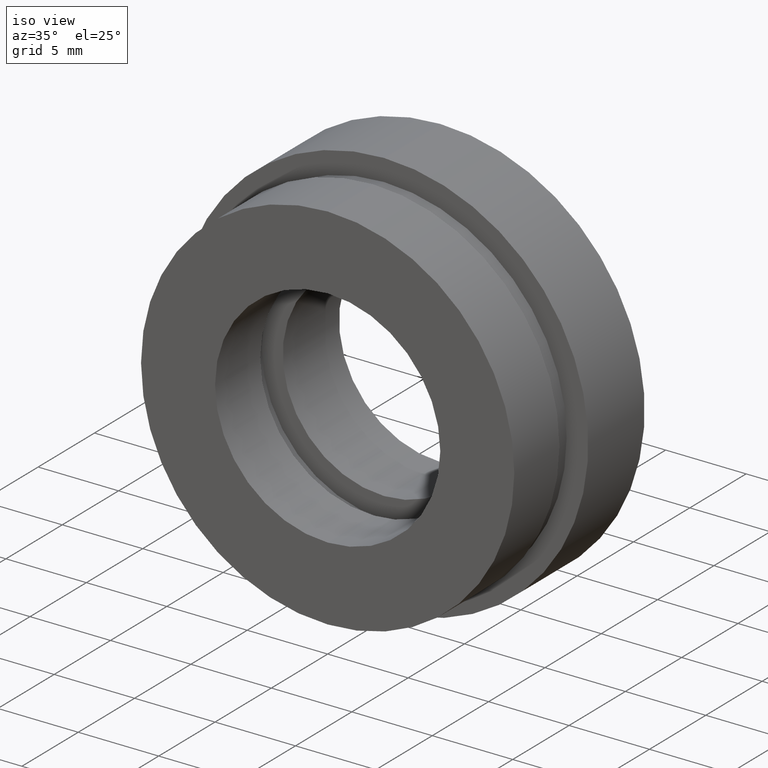
[diagram: clean part render]
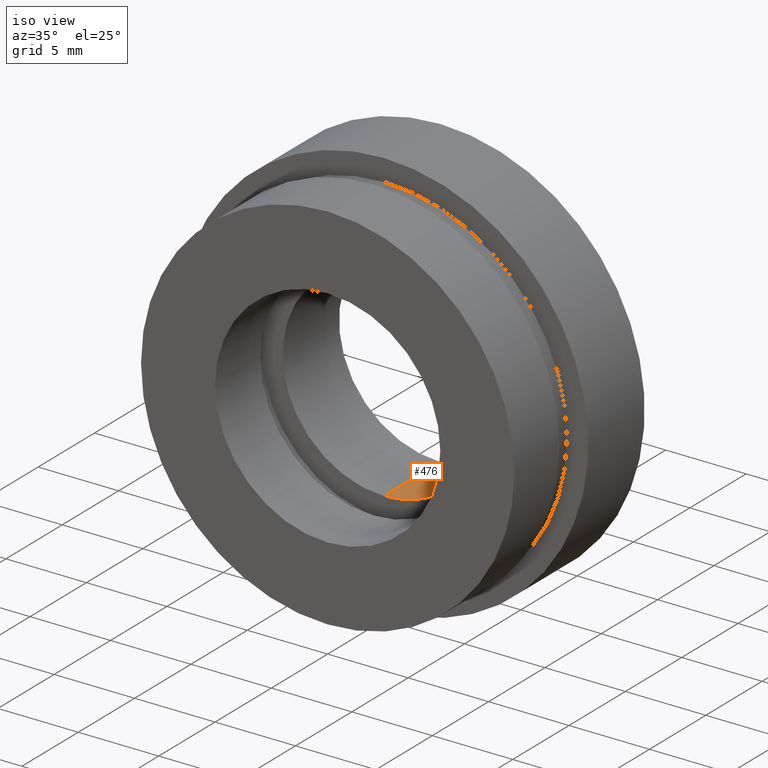
[diagram: same view with one face highlighted and labeled with its STEP entity id]
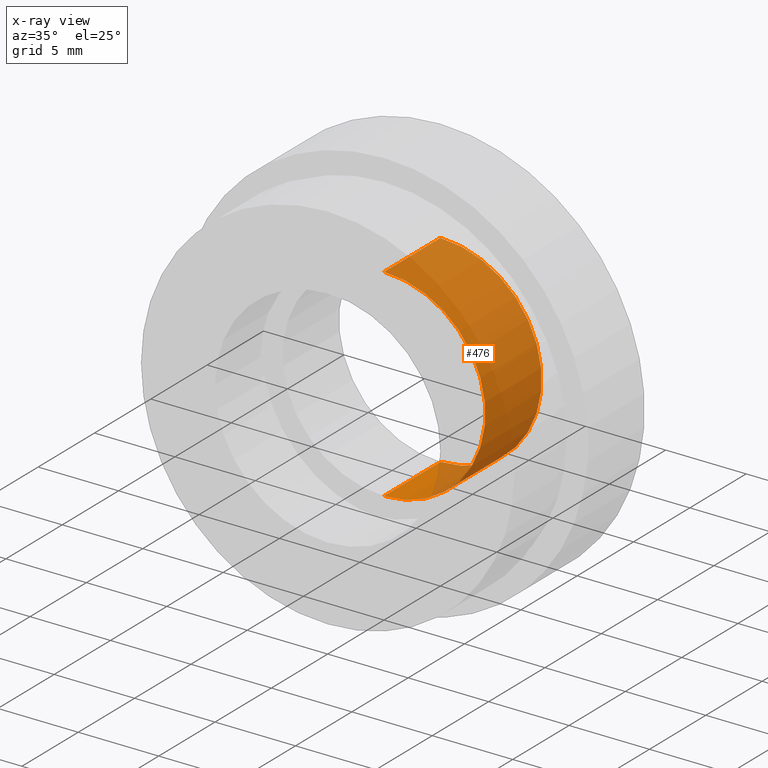
[diagram: x-ray of the same camera — body ghosted, the highlighted face saturated]
A machine part, iso view. The second image highlights one B-rep face of the part: STEP entity #476.
The next image is the same camera in x-ray: the body ghosted, the highlighted face saturated — about 94% of this face is hidden behind the body in this view.
In plain terms, the highlighted cylindrical surface (partial cylindrical patch) has radius 6.295 mm, axis along (-0, 1, -0).
Its self-contained STEP definition (entity closure, byte-faithful):
#14 = DIRECTION ( 'NONE',  ( 0.0000000000000000000, 0.0000000000000000000, 1.000000000000000000 ) ) ;
#26 = CARTESIAN_POINT ( 'NONE',  ( 0.0000000000000000000, 4.999999999999999100, 0.0000000000000000000 ) ) ;
#31 = DIRECTION ( 'NONE',  ( -0.0000000000000000000, 1.000000000000000000, -0.0000000000000000000 ) ) ;
#34 = DIRECTION ( 'NONE',  ( -0.0000000000000000000, 1.000000000000000000, -0.0000000000000000000 ) ) ;
#36 = DIRECTION ( 'NONE',  ( 0.0000000000000000000, 0.0000000000000000000, 1.000000000000000000 ) ) ;
#50 = LINE ( 'NONE', #131, #64 ) ;
#53 = ORIENTED_EDGE ( 'NONE', *, *, #604, .T. ) ;
#55 = AXIS2_PLACEMENT_3D ( 'NONE', #274, #265, #387 ) ;
#64 = VECTOR ( 'NONE', #282, 1000.000000000000000 ) ;
#86 = LINE ( 'NONE', #370, #364 ) ;
#90 = CARTESIAN_POINT ( 'NONE',  ( 0.0000000000000000000, 10.00000000000000000, 0.0000000000000000000 ) ) ;
#126 = ORIENTED_EDGE ( 'NONE', *, *, #618, .F. ) ;
#127 = VERTEX_POINT ( 'NONE', #440 ) ;
#131 = CARTESIAN_POINT ( 'NONE',  ( 0.0000000000000000000, 13.74468085106383300, 6.295000000000001700 ) ) ;
#138 = VERTEX_POINT ( 'NONE', #246 ) ;
#142 = AXIS2_PLACEMENT_3D ( 'NONE', #26, #31, #36 ) ;
#169 = DIRECTION ( 'NONE',  ( -0.0000000000000000000, 1.000000000000000000, -0.0000000000000000000 ) ) ;
#195 = CIRCLE ( 'NONE', #142, 6.295000000000001700 ) ;
#202 = VERTEX_POINT ( 'NONE', #577 ) ;
#244 = ORIENTED_EDGE ( 'NONE', *, *, #449, .T. ) ;
#246 = CARTESIAN_POINT ( 'NONE',  ( 0.0000000000000000000, 10.00000000000000000, 6.295000000000001700 ) ) ;
#265 = DIRECTION ( 'NONE',  ( -0.0000000000000000000, 1.000000000000000000, -0.0000000000000000000 ) ) ;
#274 = CARTESIAN_POINT ( 'NONE',  ( 0.0000000000000000000, 13.74468085106383300, 0.0000000000000000000 ) ) ;
#282 = DIRECTION ( 'NONE',  ( -0.0000000000000000000, 1.000000000000000000, -0.0000000000000000000 ) ) ;
#314 = ORIENTED_EDGE ( 'NONE', *, *, #432, .F. ) ;
#336 = CIRCLE ( 'NONE', #456, 6.295000000000001700 ) ;
#352 = EDGE_LOOP ( 'NONE', ( #126, #314, #244, #53 ) ) ;
#364 = VECTOR ( 'NONE', #169, 1000.000000000000000 ) ;
#370 = CARTESIAN_POINT ( 'NONE',  ( 7.709151600632590500E-016, 13.74468085106383300, -6.295000000000001700 ) ) ;
#387 = DIRECTION ( 'NONE',  ( 0.0000000000000000000, 0.0000000000000000000, 1.000000000000000000 ) ) ;
#432 = EDGE_CURVE ( 'NONE', #533, #127, #195, .T. ) ;
#440 = CARTESIAN_POINT ( 'NONE',  ( 7.709151600632590500E-016, 4.999999999999999100, -6.295000000000001700 ) ) ;
#449 = EDGE_CURVE ( 'NONE', #533, #138, #50, .T. ) ;
#456 = AXIS2_PLACEMENT_3D ( 'NONE', #90, #34, #14 ) ;
#476 = ADVANCED_FACE ( 'NONE', ( #502 ), #576, .F. ) ;
#502 = FACE_OUTER_BOUND ( 'NONE', #352, .T. ) ;
#533 = VERTEX_POINT ( 'NONE', #562 ) ;
#562 = CARTESIAN_POINT ( 'NONE',  ( 0.0000000000000000000, 4.999999999999999100, 6.295000000000001700 ) ) ;
#576 = CYLINDRICAL_SURFACE ( 'NONE', #55, 6.295000000000001700 ) ;
#577 = CARTESIAN_POINT ( 'NONE',  ( 7.709151600632590500E-016, 10.00000000000000000, -6.295000000000001700 ) ) ;
#604 = EDGE_CURVE ( 'NONE', #138, #202, #336, .T. ) ;
#618 = EDGE_CURVE ( 'NONE', #127, #202, #86, .T. ) ;